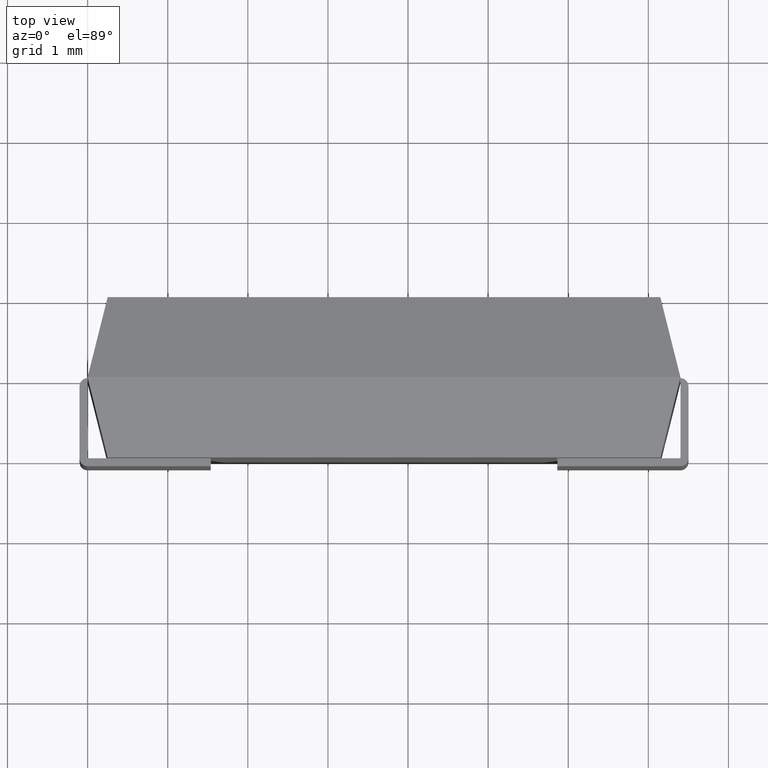
[diagram: clean part render]
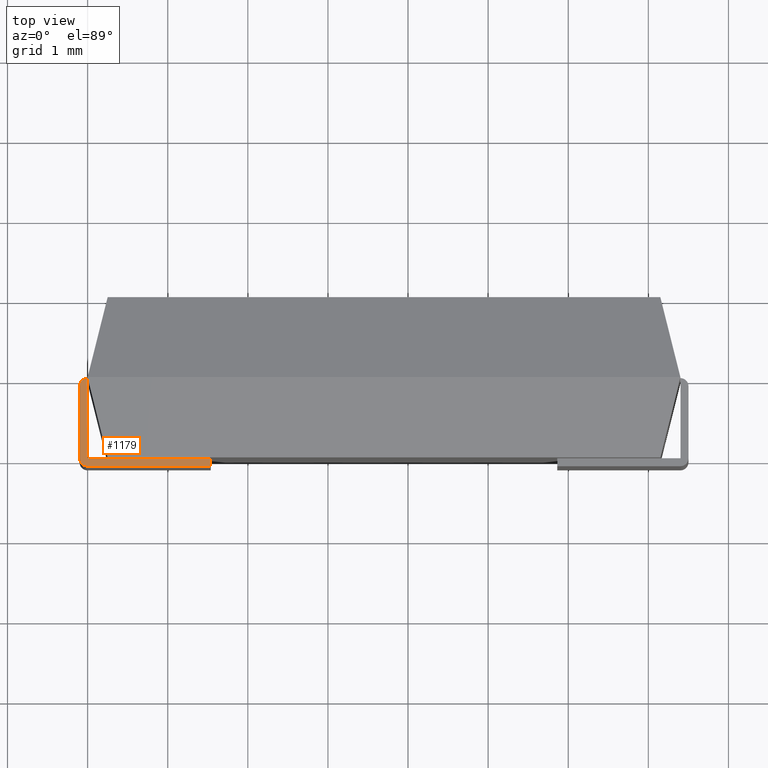
[diagram: same view with one face highlighted and labeled with its STEP entity id]
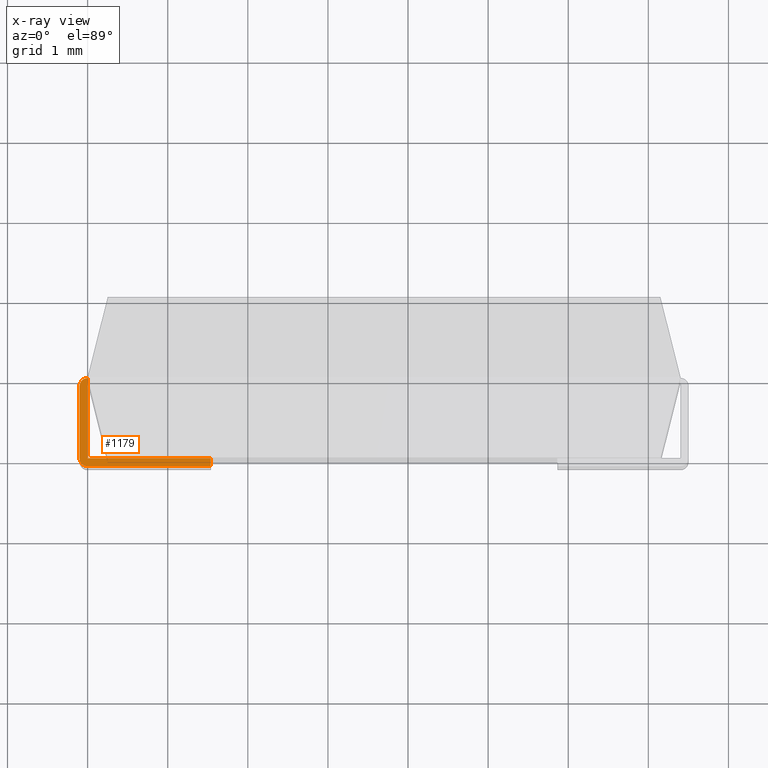
[diagram: x-ray of the same camera — body ghosted, the highlighted face saturated]
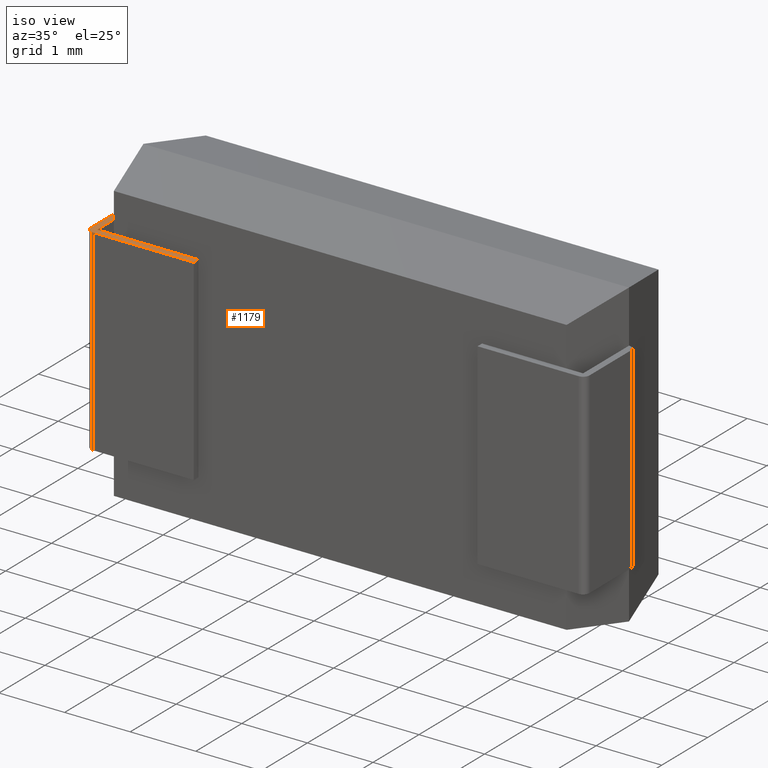
[diagram: same view with one face highlighted and labeled with its STEP entity id]
A machine part, top view. The second image highlights one B-rep face of the part: STEP entity #1179.
The next image is the same camera in x-ray: the body ghosted, the highlighted face saturated — about 0% of this face is hidden behind the body in this view.
A second angle (iso view) of the same face is appended — the face is thin or edge-on in the first view.
In plain terms, the highlighted planar face has unit normal (0, -0, 1).
Its self-contained STEP definition (entity closure, byte-faithful):
#50 = VERTEX_POINT ( 'NONE', #578 ) ;
#52 = EDGE_CURVE ( 'NONE', #301, #2411, #541, .T. ) ;
#66 = ORIENTED_EDGE ( 'NONE', *, *, #2457, .T. ) ;
#131 = DIRECTION ( 'NONE',  ( 0.000000000000000000, 1.000000000000000000, 0.000000000000000000 ) ) ;
#146 = DIRECTION ( 'NONE',  ( 0.000000000000000000, -0.000000000000000000, 1.000000000000000000 ) ) ;
#147 = EDGE_CURVE ( 'NONE', #2411, #1406, #1831, .T. ) ;
#160 = DIRECTION ( 'NONE',  ( 6.352747104407256395E-19, 1.000000000000000000, 0.000000000000000000 ) ) ;
#235 = CARTESIAN_POINT ( 'NONE',  ( -0.1010000000000000064, 0.9999999999999991118, -0.7999999999999999334 ) ) ;
#263 = CIRCLE ( 'NONE', #663, 0.1000000000000000056 ) ;
#301 = VERTEX_POINT ( 'NONE', #1396 ) ;
#313 = ORIENTED_EDGE ( 'NONE', *, *, #2177, .T. ) ;
#332 = EDGE_LOOP ( 'NONE', ( #2794, #313, #832, #1528, #2086, #915, #66, #2548 ) ) ;
#541 = LINE ( 'NONE', #788, #2339 ) ;
#578 = CARTESIAN_POINT ( 'NONE',  ( -0.1009999999999999926, 0.8999999999999991340, -0.7999999999999999334 ) ) ;
#663 = AXIS2_PLACEMENT_3D ( 'NONE', #2239, #146, #2950 ) ;
#749 = DIRECTION ( 'NONE',  ( 1.000000000000000000, 0.000000000000000000, 0.000000000000000000 ) ) ;
#788 = CARTESIAN_POINT ( 'NONE',  ( 1.537779882194698855, -0.1000000000000000472, -0.7999999999999999334 ) ) ;
#792 = VECTOR ( 'NONE', #749, 1000.000000000000000 ) ;
#829 = CARTESIAN_POINT ( 'NONE',  ( 0.2500000000000001665, -3.388131789017201356E-18, -0.7999999999999999334 ) ) ;
#832 = ORIENTED_EDGE ( 'NONE', *, *, #1830, .T. ) ;
#865 = PLANE ( 'NONE',  #1767 ) ;
#915 = ORIENTED_EDGE ( 'NONE', *, *, #1198, .T. ) ;
#1084 = VERTEX_POINT ( 'NONE', #2380 ) ;
#1090 = VECTOR ( 'NONE', #1167, 1000.000000000000000 ) ;
#1092 = AXIS2_PLACEMENT_3D ( 'NONE', #1325, #2706, #1129 ) ;
#1129 = DIRECTION ( 'NONE',  ( 1.000000000000000000, 0.000000000000000000, 0.000000000000000000 ) ) ;
#1167 = DIRECTION ( 'NONE',  ( 1.601662300262678215E-16, -1.000000000000000000, 0.000000000000000000 ) ) ;
#1179 = ADVANCED_FACE ( 'NONE', ( #1985 ), #865, .T. ) ;
#1185 = CARTESIAN_POINT ( 'NONE',  ( 1.537779882194698855, -3.192222914327899506E-17, -0.7999999999999999334 ) ) ;
#1198 = EDGE_CURVE ( 'NONE', #1406, #2982, #2328, .T. ) ;
#1325 = CARTESIAN_POINT ( 'NONE',  ( -0.0009999999999999811557, 0.8999999999999991340, -0.7999999999999999334 ) ) ;
#1341 = LINE ( 'NONE', #1807, #1586 ) ;
#1355 = DIRECTION ( 'NONE',  ( -1.000000000000000000, -1.017195236304267233E-16, 0.000000000000000000 ) ) ;
#1396 = CARTESIAN_POINT ( 'NONE',  ( 1.537779882194698855, -0.1000000000000000472, -0.7999999999999999334 ) ) ;
#1406 = VERTEX_POINT ( 'NONE', #829 ) ;
#1528 = ORIENTED_EDGE ( 'NONE', *, *, #52, .T. ) ;
#1531 = EDGE_CURVE ( 'NONE', #50, #1084, #2326, .T. ) ;
#1566 = DIRECTION ( 'NONE',  ( 1.000000000000000000, 0.000000000000000000, -0.000000000000000000 ) ) ;
#1586 = VECTOR ( 'NONE', #160, 1000.000000000000000 ) ;
#1594 = VERTEX_POINT ( 'NONE', #1942 ) ;
#1710 = CARTESIAN_POINT ( 'NONE',  ( 1.537779882194698855, -3.192222914327899506E-17, -0.7999999999999999334 ) ) ;
#1767 = AXIS2_PLACEMENT_3D ( 'NONE', #1795, #2715, #1566 ) ;
#1795 = CARTESIAN_POINT ( 'NONE',  ( 0.000000000000000000, 0.000000000000000000, -0.7999999999999999334 ) ) ;
#1807 = CARTESIAN_POINT ( 'NONE',  ( -0.001000000000000000671, -1.884461857322079048E-16, -0.7999999999999999334 ) ) ;
#1830 = EDGE_CURVE ( 'NONE', #1979, #301, #2834, .T. ) ;
#1831 = LINE ( 'NONE', #2094, #2773 ) ;
#1942 = CARTESIAN_POINT ( 'NONE',  ( -0.001000000000000000021, 0.9999999999999991118, -0.7999999999999999334 ) ) ;
#1979 = VERTEX_POINT ( 'NONE', #2417 ) ;
#1985 = FACE_OUTER_BOUND ( 'NONE', #332, .T. ) ;
#2086 = ORIENTED_EDGE ( 'NONE', *, *, #147, .T. ) ;
#2094 = CARTESIAN_POINT ( 'NONE',  ( 1.537779882194698855, -3.192222914327899506E-17, -0.7999999999999999334 ) ) ;
#2137 = EDGE_CURVE ( 'NONE', #1594, #50, #2597, .T. ) ;
#2163 = CARTESIAN_POINT ( 'NONE',  ( -0.001000000000000000671, -1.884461857322079048E-16, -0.7999999999999999334 ) ) ;
#2177 = EDGE_CURVE ( 'NONE', #1084, #1979, #263, .T. ) ;
#2239 = CARTESIAN_POINT ( 'NONE',  ( -0.0009999999999998371737, 0.000000000000000000, -0.7999999999999999334 ) ) ;
#2326 = LINE ( 'NONE', #235, #1090 ) ;
#2328 = LINE ( 'NONE', #1185, #2545 ) ;
#2339 = VECTOR ( 'NONE', #131, 1000.000000000000000 ) ;
#2380 = CARTESIAN_POINT ( 'NONE',  ( -0.1009999999999998399, 0.000000000000000000, -0.7999999999999999334 ) ) ;
#2411 = VERTEX_POINT ( 'NONE', #1710 ) ;
#2417 = CARTESIAN_POINT ( 'NONE',  ( -0.0009999999999998345716, -0.1000000000000000472, -0.7999999999999999334 ) ) ;
#2457 = EDGE_CURVE ( 'NONE', #2982, #1594, #1341, .T. ) ;
#2545 = VECTOR ( 'NONE', #1355, 1000.000000000000000 ) ;
#2548 = ORIENTED_EDGE ( 'NONE', *, *, #2137, .T. ) ;
#2597 = CIRCLE ( 'NONE', #1092, 0.1000000000000000056 ) ;
#2706 = DIRECTION ( 'NONE',  ( 0.000000000000000000, -0.000000000000000000, 1.000000000000000000 ) ) ;
#2715 = DIRECTION ( 'NONE',  ( 0.000000000000000000, -0.000000000000000000, 1.000000000000000000 ) ) ;
#2748 = CARTESIAN_POINT ( 'NONE',  ( -0.1009999999999998260, -0.1000000000000000472, -0.7999999999999999334 ) ) ;
#2767 = DIRECTION ( 'NONE',  ( -1.000000000000000000, -1.017195236304267233E-16, 0.000000000000000000 ) ) ;
#2773 = VECTOR ( 'NONE', #2767, 1000.000000000000000 ) ;
#2794 = ORIENTED_EDGE ( 'NONE', *, *, #1531, .T. ) ;
#2834 = LINE ( 'NONE', #2748, #792 ) ;
#2950 = DIRECTION ( 'NONE',  ( 1.000000000000000000, 0.000000000000000000, 0.000000000000000000 ) ) ;
#2982 = VERTEX_POINT ( 'NONE', #2163 ) ;